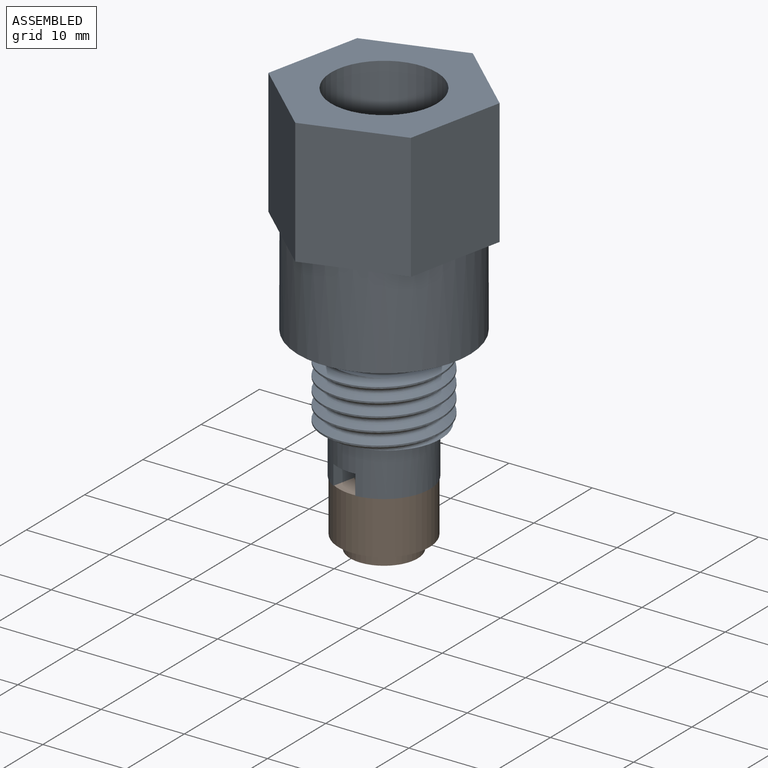
[diagram: assembled view]
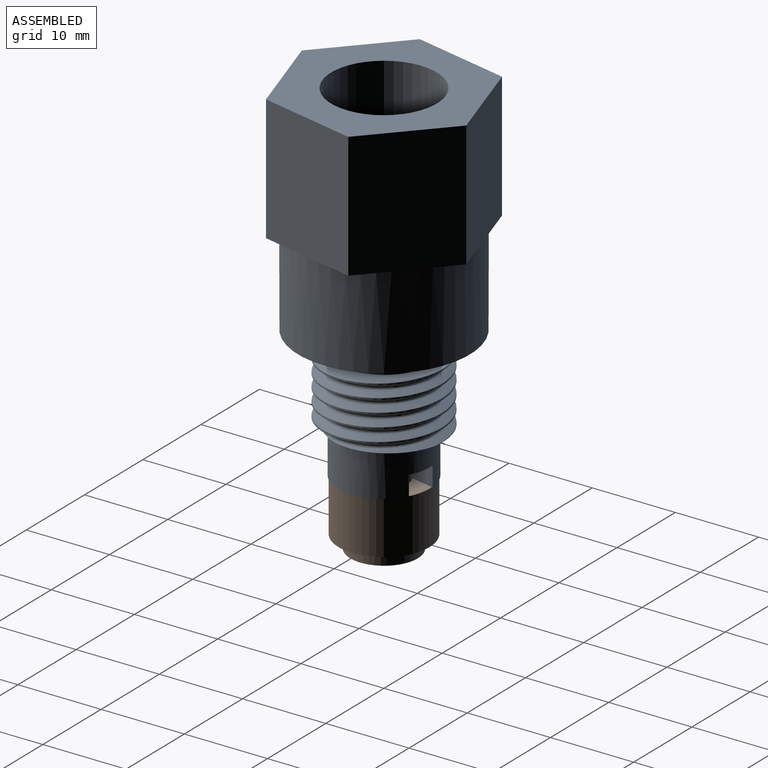
[diagram: assembled view, second angle]
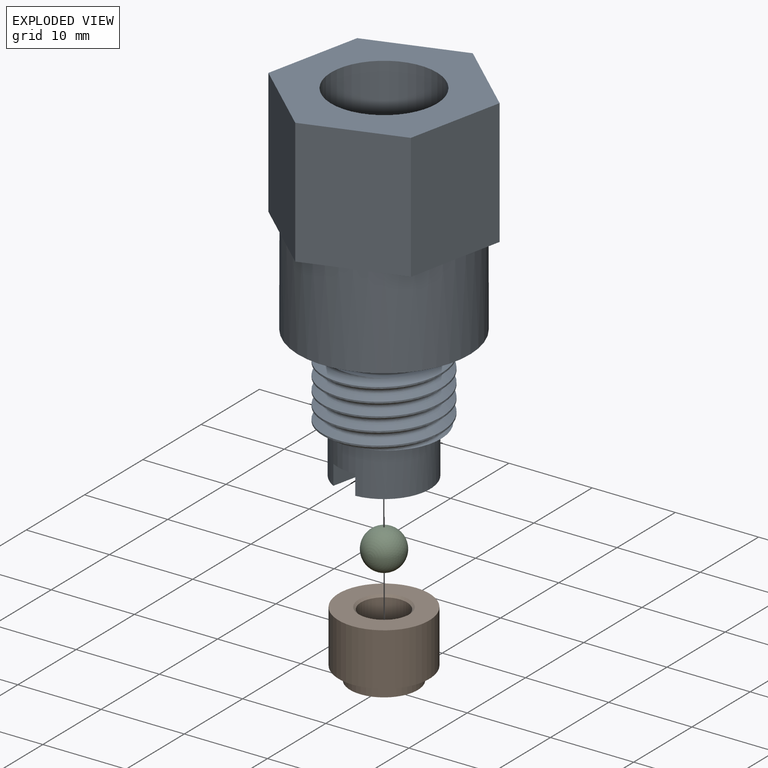
[diagram: exploded view]
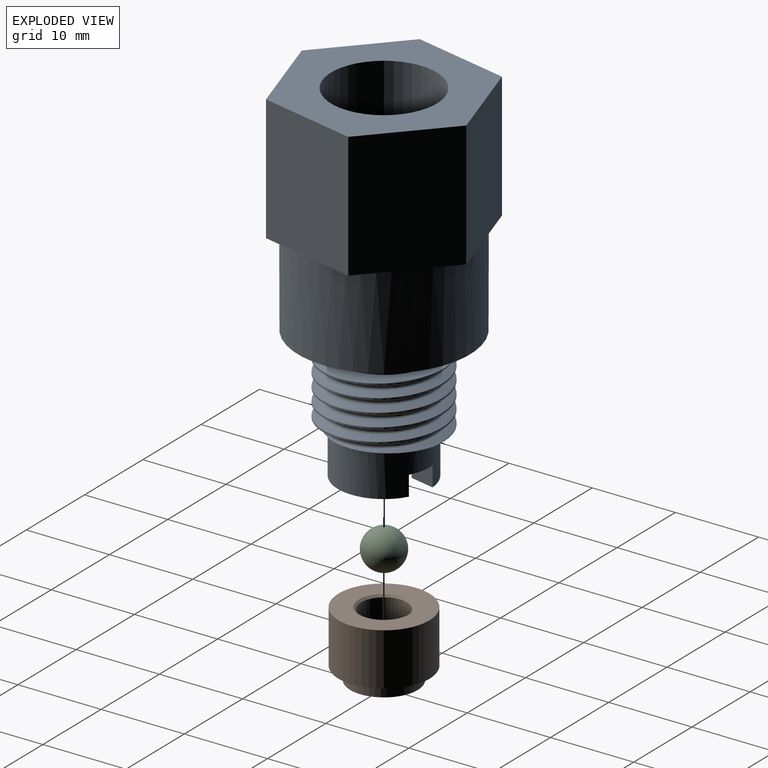
[diagram: exploded view, second angle]
ASSEMBLY  parts=3 mates=2
PART A: 41 faces, bbox 24.3x21.1x42.5 mm
  f0: cylinder r=7.14mm len=14.29mm, axis (0,0,-1), area 45.4mm2, adj f1,f2,f39,f40
  f1: plane 13.82x13.75mm, normal (0,0,1), area 42.1mm2, adj f0,f36,f38,f39,f40
  f2: plane 13.82x13.75mm, normal (0,0,-1), area 42.1mm2, adj f0,f37,f38,f39,f40
  f3: plane 3.28x3.18mm, normal (0,0,-1), area 9.1mm2, adj f4,f5,f29,f37
  f4: plane 3.04x2.38mm, normal (0,-1,0), area 7.3mm2, adj f3,f28,f29,f37
  f5: plane 3.04x2.38mm, normal (0,1,0), area 7.3mm2, adj f3,f12,f29,f37
  f6: plane 3.04x2.38mm, normal (0,1,0), area 7.3mm2, adj f8,f12,f29,f37
  f7: plane 3.04x2.38mm, normal (0,-1,0), area 7.3mm2, adj f8,f28,f29,f37
  f8: plane 3.28x3.18mm, normal (0,0,-1), area 9.1mm2, adj f6,f7,f29,f37
  f9: cylinder r=6.35mm len=12.7mm, axis (0,0,1), area 441.4mm2, adj f20,f33,f35
  f10: cylinder r=1.03mm len=19.86mm, axis (0,0,1), area 128.4mm2, adj f32,f34
  f11: cylinder r=0.4mm len=6mm, axis (0,0,-1), area 15mm2, adj f31,f32
  f12: plane 10.65x3.97mm, normal (0,0,-1), area 27.3mm2, adj f5,f6,f29,f37
  f13: cylinder r=10.32mm len=20.64mm, axis (0,0,-1), area 720.5mm2, adj f21,f22,f23,f24,f25,f26,f27
  f14: plane 15.08x10.32mm, normal (0.87,-0.5,0), area 179.7mm2, adj f15,f19,f20,f22,f24
  f15: plane 15.08x10.32mm, normal (0.87,0.5,0), area 179.7mm2, adj f14,f16,f20,f23,f24
  f16: plane 15.08x11.92mm, normal (0,1,0), area 179.7mm2, adj f15,f17,f20,f23,f26
  f17: plane 15.08x10.32mm, normal (-0.87,0.5,0), area 179.7mm2, adj f16,f18,f20,f21,f26
  f18: plane 15.08x10.32mm, normal (-0.87,-0.5,0), area 179.7mm2, adj f17,f19,f20,f21,f25
  f19: plane 15.08x11.92mm, normal (0,-1,0), area 177.7mm2, adj f14,f18,f20,f22,f25,f35
  f20: plane 23.83x20.64mm, normal (0,0,1), area 242.2mm2, adj f9,f14,f15,f16,f17,f18,f19
  f21: plane 10.32x2.98mm, normal (0,0,-1), area 5.7mm2, adj f13,f17,f18
  f22: plane 8.94x5.16mm, normal (0,0,-1), area 5.7mm2, adj f13,f14,f19
  f23: plane 8.94x5.16mm, normal (0,0,-1), area 5.7mm2, adj f13,f15,f16
  f24: plane 10.32x2.98mm, normal (0,0,-1), area 5.7mm2, adj f13,f14,f15
  f25: plane 8.94x5.16mm, normal (0,0,-1), area 5.7mm2, adj f13,f18,f19
  f26: plane 8.94x5.16mm, normal (0,0,-1), area 5.7mm2, adj f13,f16,f17
  f27: plane 20.64x20.64mm, normal (0,0,-1), area 237.5mm2, adj f13,f36
  f28: plane 10.65x3.97mm, normal (0,0,-1), area 27.3mm2, adj f4,f7,f29,f37
  f29: cylinder r=2.78mm len=5.56mm, axis (0,0,-1), area 39.3mm2, adj f3,f4,f5,f6,f7,f8,f12,f28
  f30: plane 5.56x5.56mm, normal (0,0,-1), area 20mm2, adj f29,f31
  f31: cone r=0.4mm half-angle=45deg, axis (0,0,-1), area 5.3mm2, adj f11,f30
  f32: cone r=0mm half-angle=59deg, axis (0,0,1), area 3.3mm2, adj f10,f11
  f33: plane 12.7x12.7mm, normal (0,0,1), area 109.8mm2, adj f9,f34
  f34: cone r=0mm half-angle=59deg, axis (0,0,1), area 15.8mm2, adj f10,f33
  f35: cylinder r=0.79mm len=4.02mm, axis (0,-1,0), area 20mm2, adj f9,f19
  f36: cylinder r=5.56mm len=11.11mm, axis (0,0,1), area 83.1mm2, adj f1,f27
  f37: cylinder r=5.56mm len=11.11mm, axis (0,0,-1), area 178.6mm2, adj f2,f3,f4,f5,f6,f7,f8,f12
  f38: bspline ~14.51x12.57mm, area 87mm2, adj f1,f2,f39,f40
  f39: bspline ~16.5x14.29mm, area 209.4mm2, adj f0,f1,f2,f38
  f40: bspline ~16.5x14.29mm, area 209.5mm2, adj f0,f1,f2,f38
PART B: 8 faces, bbox 10.9x10.9x7.9 mm
  f0: cylinder r=5.46mm len=10.92mm, axis (0,0,-1), area 217.9mm2, adj f1,f3
  f1: plane 10.92x10.92mm, normal (0,0,1), area 64.8mm2, adj f0,f6
  f2: cylinder r=4.06mm len=8.13mm, axis (0,0,-1), area 40.5mm2, adj f3,f4
  f3: plane 10.92x10.92mm, normal (0,0,-1), area 41.8mm2, adj f0,f2
  f4: plane 8.13x8.13mm, normal (0,0,-1), area 23mm2, adj f2,f7
  f5: cylinder r=2.78mm len=7.43mm, axis (0,0,-1), area 129.7mm2, adj f6,f7
  f6: cone r=2.78mm half-angle=45deg, axis (0,0,1), area 6.6mm2, adj f1,f5
  f7: cone r=2.78mm half-angle=45deg, axis (0,0,-1), area 6.6mm2, adj f4,f5
PART C: 1 faces, bbox 4.8x4.8x4.8 mm
  f0: sphere r=2.38mm, area 71.3mm2
PLACE A rot(axis=(0,0,-1),102.2deg) t=(0,0,-24.61)mm
PLACE B rot(axis=(0,0,-1),12.2deg) t=(0,0,-7.14)mm
PLACE C t=(0,0,-15.24)mm
MATE cylindrical C.f0 <-> A.f29  axis (0,0,1) through (0,0,0)mm
MATE cylindrical B.f0 <-> A.f29  axis (0,0,1) through (0,0,0.79)mm
